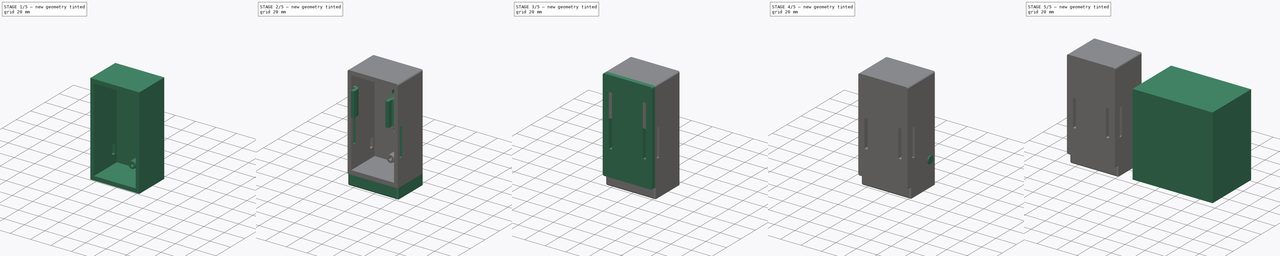
[diagram: build sequence overview — one tinted view per stage of 5, left to right]
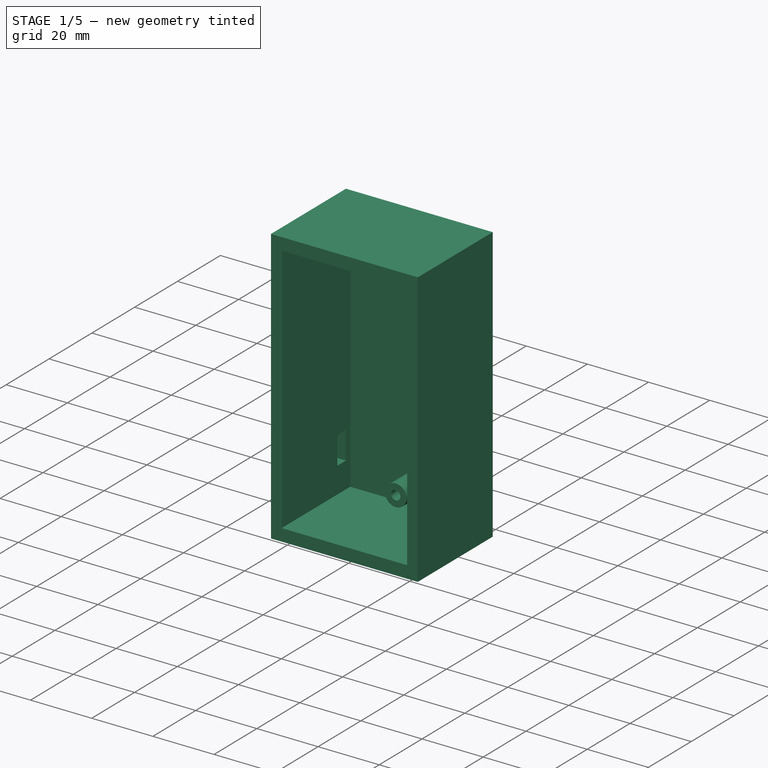
[diagram: stage 1 of 5 — iso view after this stage's code; geometry added in this stage tinted green]
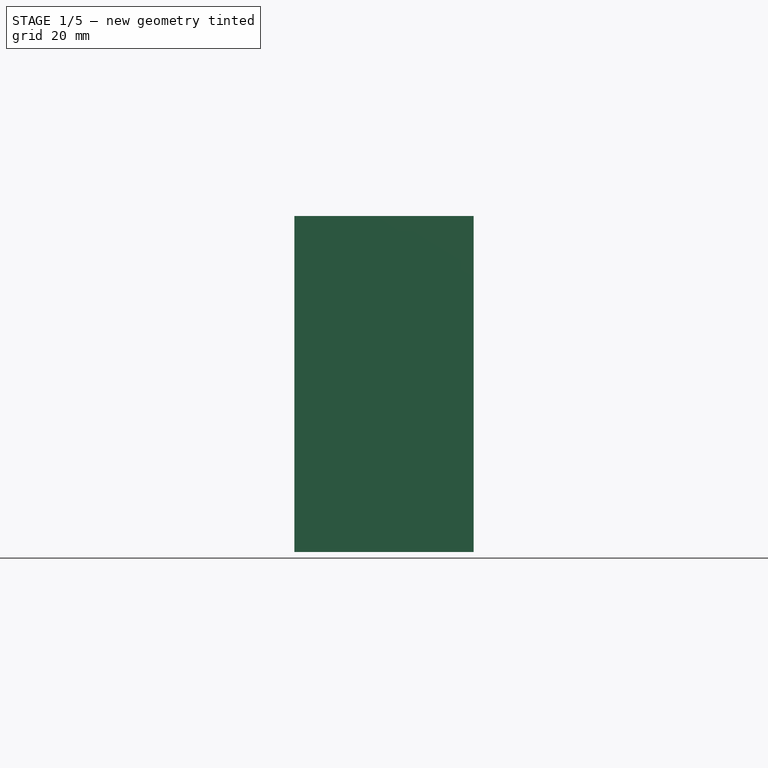
[diagram: stage 1 of 5 — front view after this stage's code; geometry added in this stage tinted green]
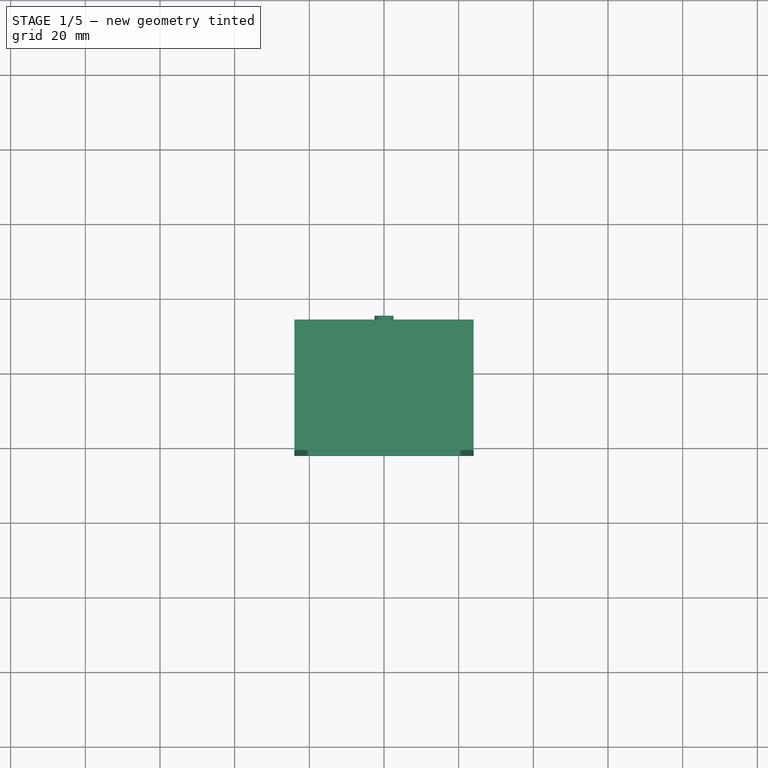
[diagram: stage 1 of 5 — top view after this stage's code; geometry added in this stage tinted green]
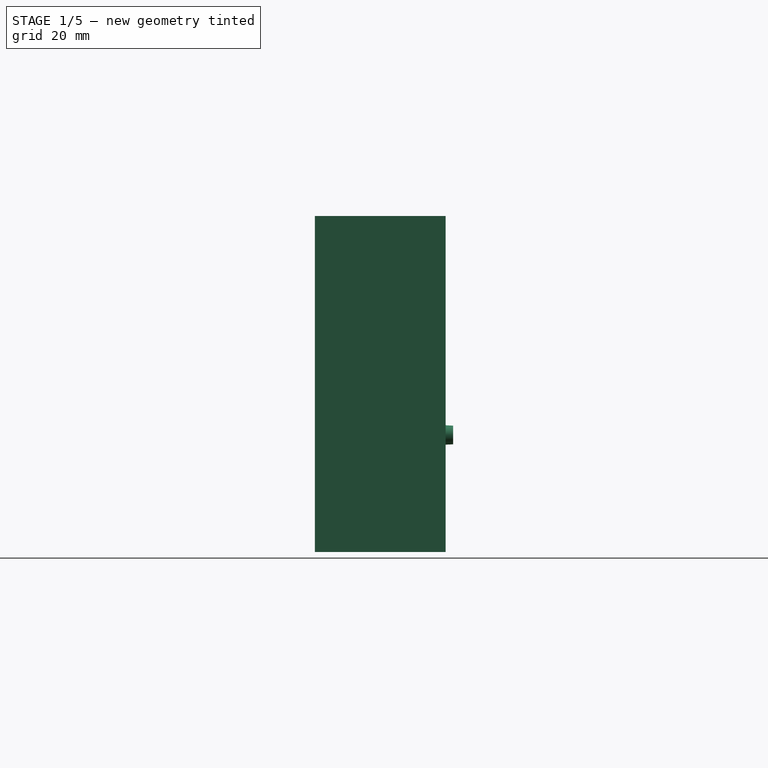
[diagram: stage 1 of 5 — right view after this stage's code; geometry added in this stage tinted green]
FCSTD DOCUMENT  (FreeCAD 0.15R4671 (Git))
Label: Sense_Beam_Tx_V2
License: All rights reserved
LicenseURL: http://en.wikipedia.org/wiki/All_rights_reserved
objects: Part::Cylinder×18, Part::MultiFuse×13, Part::Box×12, Sketcher::SketchObject×9, PartDesign::Pad×9, Drawing::FeatureViewPython×9, Part::Cut×8, Part::Feature×4, Part::Cone×3, Drawing::FeatureViewPart×2, Part::Fillet×2, PartDesign::Pocket×2, Drawing::FeaturePage×1, PartDesign::Fillet×1
note: 92 computed .brp shape members not serialized (recipe doc carries the construction recipe); baked Part::Feature solids carry a one-line shape summary decoded from their .brp

FEATURE [Part::Cylinder] Cylinder002  label="PCB Mount1"
  Angle = 360
  Height = 10
  Placement = pos=(0,12,75) rot=(1,0,0;1.5708rad)
  Radius = 3.5
FEATURE [Part::Cylinder] Cylinder003  label="PCB Mount2"
  Angle = 360
  Height = 10
  Placement = pos=(0,12,5) rot=(1,0,0;1.5708rad)
  Radius = 3.5
FEATURE [Part::Cylinder] Cylinder004  label="PCB Mount_cut1"
  Angle = 360
  Height = 6
  Placement = pos=(0,8,75) rot=(1,0,0;1.5708rad)
  Radius = 1.5
FEATURE [Part::Cylinder] Cylinder005  label="PCB Mount_cut2"
  Angle = 360
  Height = 6
  Placement = pos=(0,8,5) rot=(1,0,0;1.5708rad)
  Radius = 1.5
FEATURE [Part::MultiFuse] Fusion003
  Shapes = -> [Cylinder004,Cylinder005]
FEATURE [Part::Box] Box003  label="Cube"
  Height = 90
  Length = 48
  Placement = pos=(-24,-22,-5) rot=(0,0,1;0rad)
  Width = 35
FEATURE [Part::Box] Box004  label="Cube001"
  Height = 82
  Length = 41
  Placement = pos=(-20.5,-22,-1) rot=(0,0,1;0rad)
  Width = 32
FEATURE [Part::Cut] Cut
  Base = -> Box003
  Tool = -> Box004
FEATURE [Part::MultiFuse] Fusion008
  Shapes = -> [Cylinder002,Cylinder003]
FEATURE [Part::Cut] Cut004
  Base = -> Fusion008
  Tool = -> Fusion003
FEATURE [Part::MultiFuse] Fusion009  label="Front"
  Shapes = -> [Cut,Cut004]
FEATURE [Part::Cone] Cone002  label="Switch_Cut"
  Angle = 360
  Height = 5
  Placement = pos=(0,15,26.35) rot=(1,0,0;1.5708rad)
  Radius1 = 2.5
  Radius2 = 2.75
FEATURE [PartDesign::Pocket] Pocket
  Length = 3.5
  Sketch = -> Sketch006
  Type = 0
FEATURE [Sketcher::SketchObject] Sketch007
  Placement = pos=(0,13,0) rot=(0,0.707107,0.707107;3.14159rad)
  Support = -> Fillet006 [Face22]
  sketch-geometry (4):
    g0: LineSegment StartX=-7.5 StartY=69.9628 StartZ=0 EndX=7.5 EndY=69.9628 EndZ=0
    g1: LineSegment StartX=7.5 StartY=69.9628 StartZ=0 EndX=7.5 EndY=51.9628 EndZ=0
    g2: LineSegment StartX=7.5 StartY=51.9628 StartZ=0 EndX=-7.5 EndY=51.9628 EndZ=0
    g3: LineSegment StartX=-7.5 StartY=51.9628 StartZ=0 EndX=-7.5 EndY=69.9628 EndZ=0
  constraints (11):
    c: Coincident(g0,g1)
    c: Coincident(g1,g2)
    c: Coincident(g2,g3)
    c: Coincident(g3,g0)
    c: Horizontal(g0)
    c: Horizontal(g2)
    c: Vertical(g1)
    c: Vertical(g3)
    c: Distance(g0) = 15
    c: Distance(g1) = 18
    c: DistanceX(g-1,g0) = 7.5
FEATURE [PartDesign::Pad] Pad006
  Length = 23
  Length2 = 100
  Placement = pos=(0,-22,70) rot=(0,0,1;0rad)
  Reversed = true
  Sketch = -> Sketch004
  Type = 0
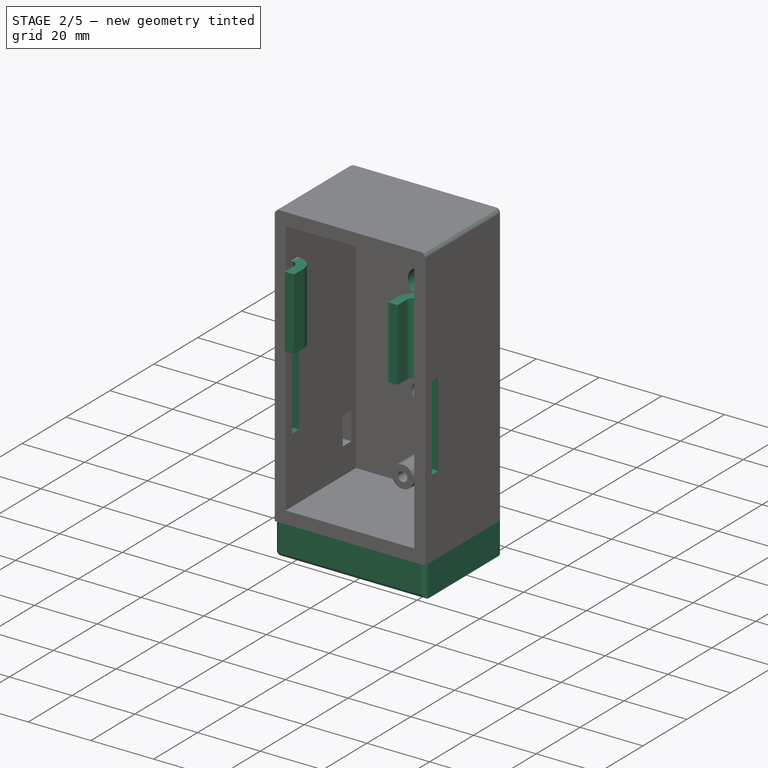
[diagram: stage 2 of 5 — iso view after this stage's code; geometry added in this stage tinted green]
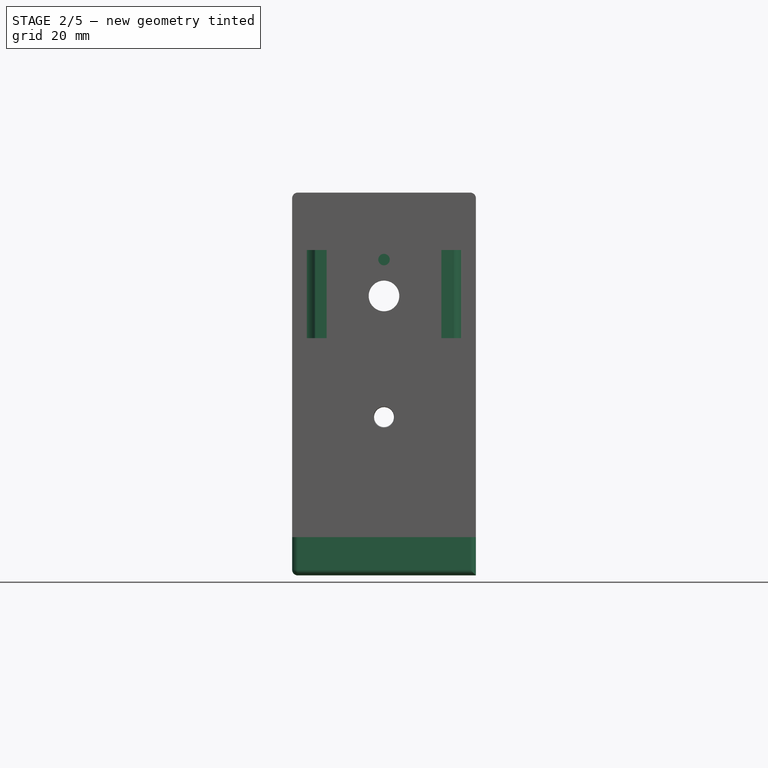
[diagram: stage 2 of 5 — front view after this stage's code; geometry added in this stage tinted green]
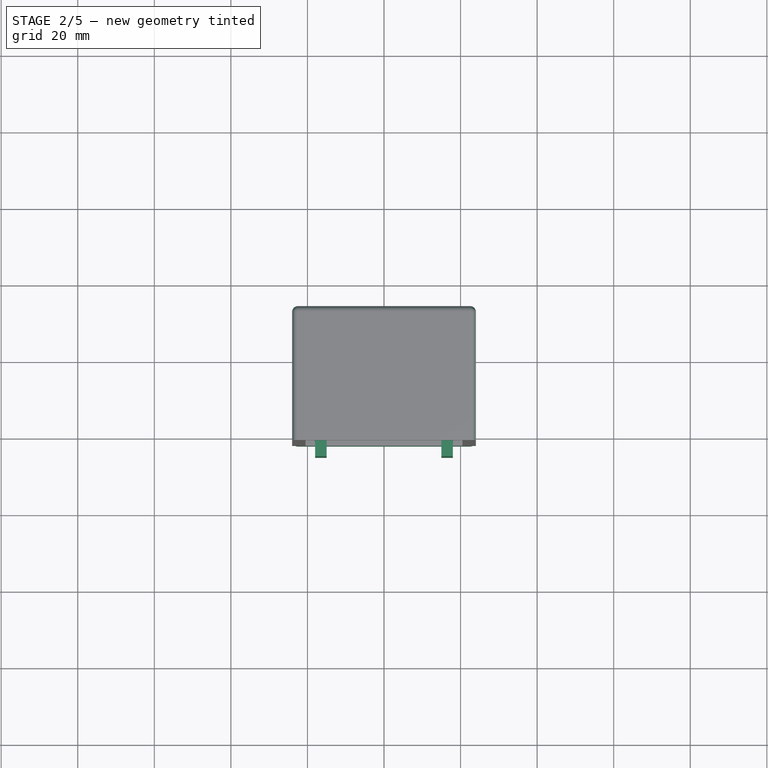
[diagram: stage 2 of 5 — top view after this stage's code; geometry added in this stage tinted green]
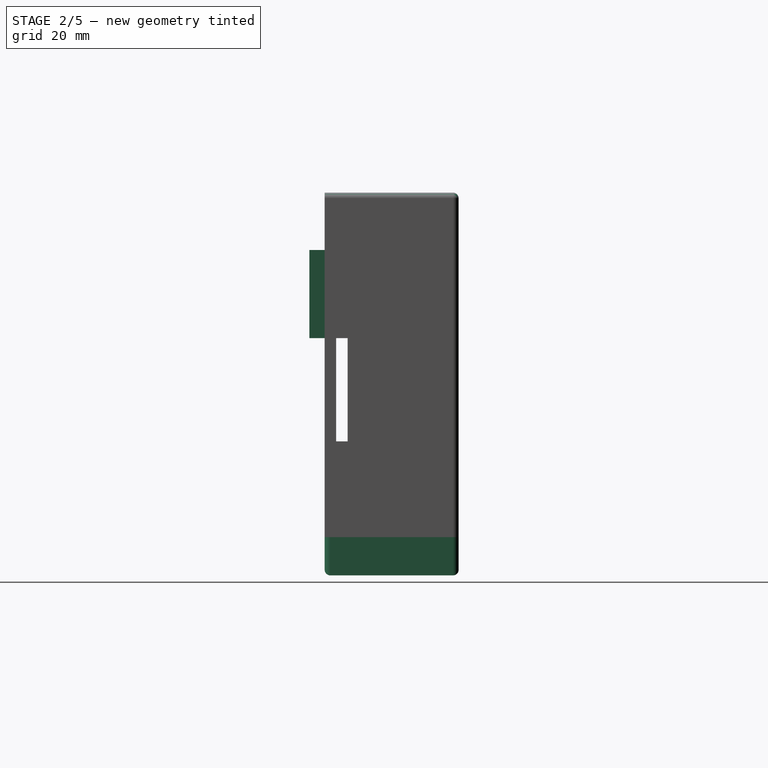
[diagram: stage 2 of 5 — right view after this stage's code; geometry added in this stage tinted green]
FEATURE [Part::Box] Box006  label="Base"
  Height = 10
  Length = 48
  Placement = pos=(-24,-22,-15) rot=(0,0,1;0rad)
  Width = 35
FEATURE [Sketcher::SketchObject] Sketch004
  Placement = pos=(0,-22,70) rot=(0,0,1;0rad)
  sketch-geometry (8):
    g0: LineSegment StartX=-20.5 StartY=6 StartZ=0 EndX=-24 EndY=6 EndZ=0
    g1: LineSegment StartX=-24 StartY=6 StartZ=0 EndX=-24 EndY=3 EndZ=0
    g2: LineSegment StartX=-24 StartY=3 StartZ=0 EndX=-20.5 EndY=3 EndZ=0
    g3: LineSegment StartX=-20.5 StartY=3 StartZ=0 EndX=-20.5 EndY=6 EndZ=0
    g4: LineSegment StartX=20.5 StartY=6 StartZ=0 EndX=24 EndY=6 EndZ=0
    g5: LineSegment StartX=24 StartY=6 StartZ=0 EndX=24 EndY=3 EndZ=0
    g6: LineSegment StartX=24 StartY=3 StartZ=0 EndX=20.5 EndY=3 EndZ=0
    g7: LineSegment StartX=20.5 StartY=3 StartZ=0 EndX=20.5 EndY=6 EndZ=0
  constraints (24):
    c: Coincident(g0,g1)
    c: Coincident(g1,g2)
    c: Coincident(g2,g3)
    c: Coincident(g3,g0)
    c: Horizontal(g0)
    c: Horizontal(g2)
    c: Vertical(g1)
    c: Vertical(g3)
    c: Distance(g0) = 3.5
    c: Coincident(g4,g5)
    c: Coincident(g5,g6)
    c: Coincident(g6,g7)
    c: Coincident(g7,g4)
    c: Horizontal(g4)
    c: Horizontal(g6)
    c: Vertical(g5)
    c: Vertical(g7)
    c: Distance(g4) = 3.5
    c: DistanceX(g-1,g0) = -20.5
    c: DistanceY(g-1,g0) = 6
    c: Distance(g1) = 3
    c: DistanceX(g-1,g4) = 20.5
    c: DistanceY(g-1,g4) = 6
    c: Distance(g5) = 3
FEATURE [PartDesign::Pad] Pad004
  Length = 50
  Length2 = 100
  Placement = pos=(0,-22,70) rot=(0,0,1;0rad)
  Reversed = true
  Type = 0
FEATURE [Part::Cylinder] Cylinder024  label="TX_LED_cut"
  Angle = 360
  Height = 10
  Placement = pos=(0,13,58) rot=(1,0,0;1.5708rad)
  Radius = 4
FEATURE [Part::Cylinder] Cylinder025  label="LED_cut"
  Angle = 360
  Height = 10
  Placement = pos=(0,13,67.5) rot=(1,0,0;1.5708rad)
  Radius = 1.5
FEATURE [Part::MultiFuse] Fusion017  label="Front_all_Cuts"
  Shapes = -> [Cylinder024,Cylinder025,Pad004,Cone002]
FEATURE [Part::Cut] Cut013
  Base = -> Pocket
  Tool = -> Fusion017
FEATURE [Part::Fillet] Fillet006  label="Front_Final"
  Base = -> Cut013
  Edges = 5 edges r=1.5: [Edge2,Edge4,Edge20,Edge21,Edge24]
FEATURE [PartDesign::Pad] Pad007
  Length = 23
  Length2 = 100
  Placement = pos=(0,-22,70) rot=(0,0,1;0rad)
  Reversed = true
  Sketch = -> Sketch003
  Type = 0
FEATURE [PartDesign::Pad] Pad008
  Length = 23
  Length2 = 100
  Placement = pos=(0,-22,70) rot=(0,0,1;0rad)
  Reversed = true
  Sketch = -> Sketch002
  Type = 0
FEATURE [Part::MultiFuse] Fusion020  label="FRONT"
  Shapes = -> [Pad006,Fillet006]
FEATURE [Sketcher::SketchObject] Sketch008
  Placement = pos=(-24,-22,-15) rot=(1,0,0;3.14159rad)
  Support = -> Box006 [Face5]
  sketch-geometry (1):
    g0: Circle CenterX=24 CenterY=-17.5 CenterZ=0 NormalX=0 NormalY=0 NormalZ=1 Radius=3.8
  constraints (3):
    c: Radius(g0) = 3.8
    c: DistanceX(g-1,g0) = 24
    c: DistanceY(g-1,g0) = -17.5
FEATURE [PartDesign::Pocket] Pocket001
  Length = 10
  Placement = pos=(-24,-22,-15) rot=(0,0,1;0rad)
  Sketch = -> Sketch008
  Type = 0
FEATURE [PartDesign::Fillet] Fillet  label="BASE"
  Base = -> Pocket001 [Edge3,Edge1,Edge4,Edge5,Edge10,Edge12,Edge11,Edge6]
  Placement = pos=(-24,-22,-15) rot=(0,0,1;0rad)
  Radius = 1.5
FEATURE [Sketcher::SketchObject] Sketch009
  Placement = pos=(0,13,0) rot=(0,0.707107,0.707107;3.14159rad)
  Support = -> Fusion020 [Face19]
  sketch-geometry (1):
    g0: Circle CenterX=0 CenterY=67.505 CenterZ=0 NormalX=0 NormalY=0 NormalZ=1 Radius=3
  constraints (2):
    c: PointOnObject(g0,g-2)
    c: Radius(g0) = 3
FEATURE [PartDesign::Pad] Pad009  label="FRONT_final"
  Length = 1.5
  Length2 = 100
  Reversed = true
  Sketch = -> Sketch009
  Type = 0
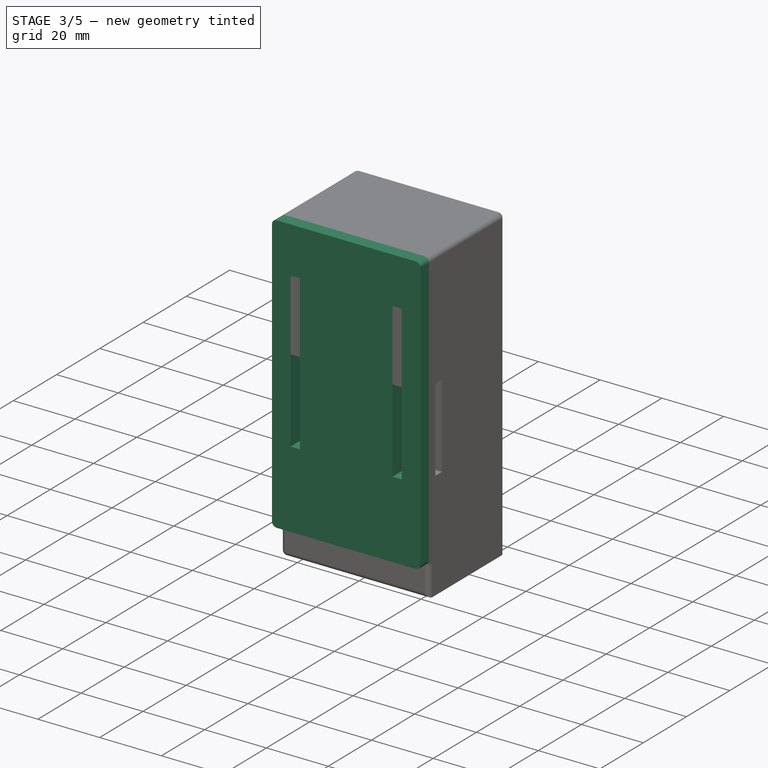
[diagram: stage 3 of 5 — iso view after this stage's code; geometry added in this stage tinted green]
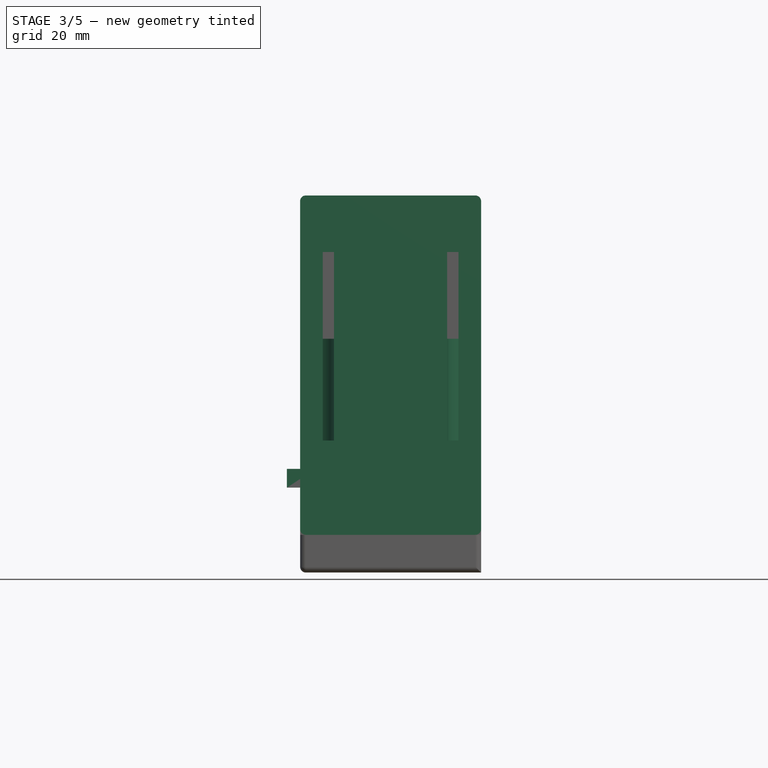
[diagram: stage 3 of 5 — front view after this stage's code; geometry added in this stage tinted green]
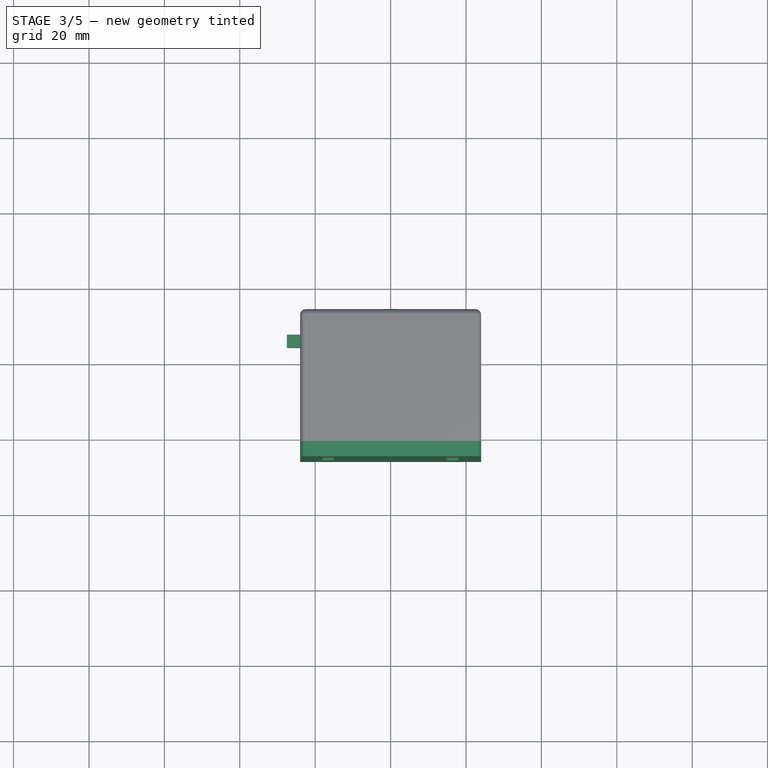
[diagram: stage 3 of 5 — top view after this stage's code; geometry added in this stage tinted green]
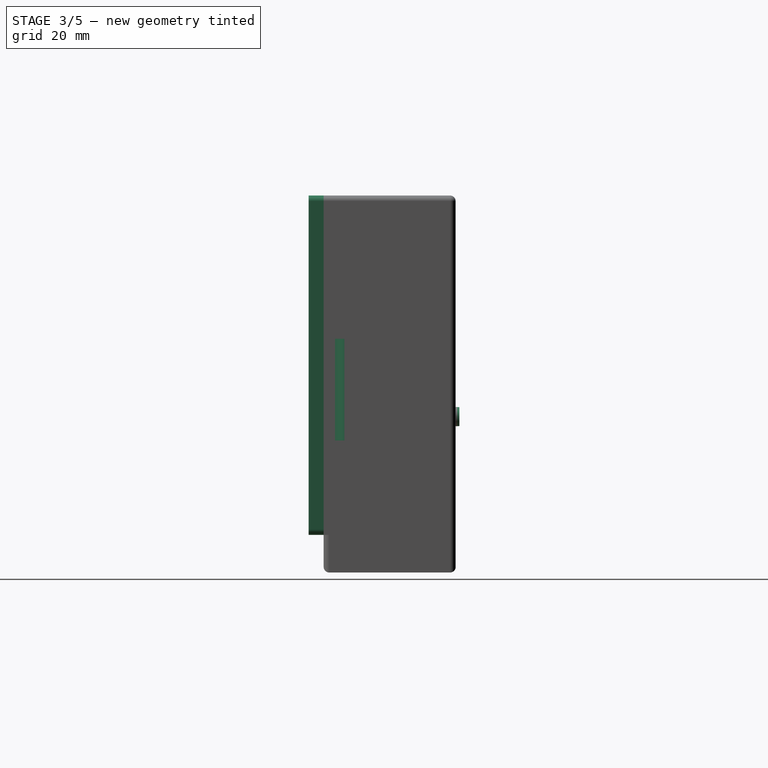
[diagram: stage 3 of 5 — right view after this stage's code; geometry added in this stage tinted green]
FEATURE [Part::Box] Box005  label="Back_Cover"
  Height = 90
  Length = 48
  Placement = pos=(-24,-26,-5) rot=(0,0,1;0rad)
  Width = 4
FEATURE [Sketcher::SketchObject] Sketch001
  Placement = pos=(0,-22,81) rot=(0,0,1;0rad)
  sketch-geometry (6):
    g0: LineSegment StartX=-20.5 StartY=0 StartZ=0 EndX=-20.5 EndY=10 EndZ=0
    g1: LineSegment StartX=-20.5 StartY=10 StartZ=0 EndX=-10.5 EndY=0 EndZ=0
    g2: LineSegment StartX=-10.5 StartY=0 StartZ=0 EndX=-20.5 EndY=0 EndZ=0
    g3: LineSegment StartX=20.5 StartY=0 StartZ=0 EndX=10.5 EndY=0 EndZ=0
    g4: LineSegment StartX=10.5 StartY=0 StartZ=0 EndX=20.5 EndY=10 EndZ=0
    g5: LineSegment StartX=20.5 StartY=10 StartZ=0 EndX=20.5 EndY=0 EndZ=0
  constraints (18):
    c: Coincident(g0,g1)
    c: Coincident(g1,g2)
    c: Coincident(g2,g0)
    c: Coincident(g3,g4)
    c: Coincident(g4,g5)
    c: Coincident(g5,g3)
    c: DistanceX(g-1,g0) = -20.5
    c: DistanceY(g-1,g0) = 0
    c: DistanceY(g-1,g1) = 0
    c: DistanceY(g-1,g3) = 0
    c: DistanceY(g-1,g3) = 0
    c: DistanceX(g-1,g3) = 20.5
    c: DistanceY(g-1,g0) = 10
    c: DistanceY(g-1,g4) = 10
    c: DistanceX(g-1,g4) = 20.5
    c: DistanceX(g-1,g0) = -20.5
    c: Distance(g2) = 10
    c: Distance(g3) = 10
FEATURE [PartDesign::Pad] Pad001
  Length = 82
  Length2 = 100
  Placement = pos=(0,-22,81) rot=(0,0,1;0rad)
  Reversed = true
  Type = 0
FEATURE [Sketcher::SketchObject] Sketch002
  Placement = pos=(0,-22,70) rot=(0,0,1;0rad)
  sketch-geometry (8):
    g0: ArcOfCircle CenterX=20.5 CenterY=0 CenterZ=0 NormalX=0 NormalY=0 NormalZ=1 Radius=5.5 StartAngle=1.5708 EndAngle=3.14159
    g1: ArcOfCircle CenterX=20.5 CenterY=0 CenterZ=0 NormalX=0 NormalY=0 NormalZ=1 Radius=2.5 StartAngle=1.5708 EndAngle=3.14159
    g2: ArcOfCircle CenterX=-20.5 CenterY=0 CenterZ=0 NormalX=0 NormalY=0 NormalZ=1 Radius=5.5 StartAngle=0 EndAngle=1.5708
    g3: ArcOfCircle CenterX=-20.5 CenterY=0 CenterZ=0 NormalX=0 NormalY=0 NormalZ=1 Radius=2.5 StartAngle=0 EndAngle=1.5708
    g4: LineSegment StartX=15 StartY=0 StartZ=0 EndX=18 EndY=0 EndZ=0
    g5: LineSegment StartX=20.5 StartY=5.5 StartZ=0 EndX=20.5 EndY=2.5 EndZ=0
    g6: LineSegment StartX=-20.5 StartY=5.5 StartZ=0 EndX=-20.5 EndY=2.5 EndZ=0
    g7: LineSegment StartX=-18 StartY=0 StartZ=0 EndX=-15 EndY=0 EndZ=0
  constraints (26):
    c: DistanceX(g-1,g0) = 20.5
    c: DistanceY(g-1,g0) = 0
    c: DistanceX(g-1,g0) = 15
    c: DistanceX(g0,g0) = 0
    c: Coincident(g1,g0)
    c: DistanceX(g0,g1) = 3
    c: PointOnObject(g2,g-1)
    c: PointOnObject(g2,g-1)
    c: Coincident(g3,g2)
    c: DistanceX(g-1,g2) = -20.5
    c: DistanceX(g-1,g2) = -15
    c: DistanceX(g3,g2) = 3
    c: DistanceX(g2,g3) = 0
    c: DistanceX(g2,g3) = 0
    c: Coincident(g4,g0)
    c: Coincident(g4,g1)
    c: Horizontal(g4)
    c: Coincident(g5,g0)
    c: Coincident(g5,g1)
    c: Vertical(g5)
    c: Coincident(g6,g2)
    c: Coincident(g6,g3)
    c: Horizontal(g7)
    c: Coincident(g3,g7)
    c: Coincident(g7,g2)
    c: DistanceY(g0,g0) = 0
FEATURE [PartDesign::Pad] Pad002
  Length = 50
  Length2 = 100
  Placement = pos=(0,-22,70) rot=(0,0,1;0rad)
  Reversed = true
  Type = 0
FEATURE [Sketcher::SketchObject] Sketch003
  Placement = pos=(0,-22,70) rot=(0,0,1;0rad)
  sketch-geometry (8):
    g0: LineSegment StartX=-18 StartY=0 StartZ=0 EndX=-15 EndY=0 EndZ=0
    g1: LineSegment StartX=-15 StartY=0 StartZ=0 EndX=-15 EndY=-4 EndZ=0
    g2: LineSegment StartX=-15 StartY=-4 StartZ=0 EndX=-18 EndY=-4 EndZ=0
    g3: LineSegment StartX=-18 StartY=-4 StartZ=0 EndX=-18 EndY=0 EndZ=0
    g4: LineSegment StartX=15 StartY=0 StartZ=0 EndX=18 EndY=0 EndZ=0
    g5: LineSegment StartX=18 StartY=0 StartZ=0 EndX=18 EndY=-4 EndZ=0
    g6: LineSegment StartX=18 StartY=-4 StartZ=0 EndX=15 EndY=-4 EndZ=0
    g7: LineSegment StartX=15 StartY=-4 StartZ=0 EndX=15 EndY=0 EndZ=0
  constraints (24):
    c: Coincident(g0,g1)
    c: Coincident(g1,g2)
    c: Coincident(g2,g3)
    c: Coincident(g3,g0)
    c: Horizontal(g0)
    c: Horizontal(g2)
    c: Vertical(g1)
    c: Vertical(g3)
    c: Coincident(g4,g5)
    c: Coincident(g5,g6)
    c: Coincident(g6,g7)
    c: Coincident(g7,g4)
    c: Horizontal(g4)
    c: Horizontal(g6)
    c: Vertical(g5)
    c: Vertical(g7)
    c: Distance(g3) = 4
    c: Distance(g5) = 4
    c: Distance(g0) = 3
    c: DistanceX(g-1,g0) = -15
    c: DistanceY(g-1,g0) = 0
    c: DistanceX(g-1,g4) = 15
    c: DistanceY(g-1,g4) = 0
    c: Distance(g6) = 3
FEATURE [PartDesign::Pad] Pad003
  Length = 50
  Length2 = 100
  Placement = pos=(0,-22,70) rot=(0,0,1;0rad)
  Reversed = true
  Type = 0
FEATURE [Part::Cut] Cut006
  Base = -> Pad001
  Tool = -> Pad002
FEATURE [Part::Cylinder] Cylinder023  label="Light_Sensor_cut_cir"
  Angle = 360
  Height = 10
  Placement = pos=(0,13,13.1) rot=(1,0,0;1.5708rad)
  Radius = 2.5
FEATURE [Part::Feature] Part__Feature  label="Board_Geoms"
  Placement = pos=(-33,0.4,197) rot=(1,0,0;1.5708rad)
  shape: bbox 40 x 1.6 x 80 mm, 26 faces (baked)
FEATURE [Part::Cut] Cut009
  Base = -> Box005
  Tool = -> Pad003
FEATURE [Part::MultiFuse] Fusion013  label="Back_final"
  Shapes = -> [Cut009,Cut006]
FEATURE [Part::Fillet] Fillet005  label="Back Cover"
  Base = -> Fusion013
  Edges = 4 edges r=1.5: [Edge2,Edge4,Edge17,Edge28]
FEATURE [Part::Feature] Part__Feature002  label="4967_Tactile_Switch"
  Placement = pos=(0,-22,30.85) rot=(-1,0,0;1.5708rad)
  shape: bbox 6 x 10 x 6 mm, 8 faces (baked)
FEATURE [Part::Feature] Part__Feature003  label="Slide_Switch"
  Placement = pos=(-13,2,4) rot=(0,-1,0;1.5708rad)
  shape: bbox 7 x 7.5 x 22.5 mm, 19 faces (baked)
FEATURE [Part::Feature] Part__Feature004  label="Slide_Switch001"
  Placement = pos=(-13,2,4) rot=(0,-1,0;1.5708rad)
  shape: bbox 7.5 x 3.5 x 5 mm, 6 faces (baked)
FEATURE [Part::MultiFuse] Fusion016  label="Switch"
  Shapes = -> [Part__Feature004,Part__Feature003]
FEATURE [Sketcher::SketchObject] Sketch006
  Placement = pos=(-24,0,0) rot=(0.57735,-0.57735,-0.57735;2.0944rad)
  Support = -> Fusion009 [Face1]
  sketch-geometry (4):
    g0: LineSegment StartX=-8 StartY=16.5 StartZ=0 EndX=-4 EndY=16.5 EndZ=0
    g1: LineSegment StartX=-4 StartY=16.5 StartZ=0 EndX=-4 EndY=7.5 EndZ=0
    g2: LineSegment StartX=-4 StartY=7.5 StartZ=0 EndX=-8 EndY=7.5 EndZ=0
    g3: LineSegment StartX=-8 StartY=7.5 StartZ=0 EndX=-8 EndY=16.5 EndZ=0
  constraints (12):
    c: Coincident(g0,g1)
    c: Coincident(g1,g2)
    c: Coincident(g2,g3)
    c: Coincident(g3,g0)
    c: Horizontal(g0)
    c: Horizontal(g2)
    c: Vertical(g1)
    c: Vertical(g3)
    c: Distance(g2) = 4
    c: Distance(g1) = 9
    c: DistanceY(g-1,g1) = 7.5
    c: DistanceX(g-1,g1) = -4
FEATURE [Part::Cone] Cone
  Angle = 360
  Height = 2
  Placement = pos=(0,12,26.35) rot=(1,0,0;1.5708rad)
  Radius1 = 1.5
  Radius2 = 1.75
FEATURE [Part::Cone] Cone001
  Angle = 360
  Height = 4
  Placement = pos=(0,14,26.35) rot=(1,0,0;1.5708rad)
  Radius1 = 2.5
  Radius2 = 2.75
FEATURE [Part::Cut] Cut012  label="Switch_Cap"
  Base = -> Cone001
  Tool = -> Cone
FEATURE [Part::MultiFuse] Fusion019  label="BACK"
  Shapes = -> [Pad008,Pad007,Fillet005]
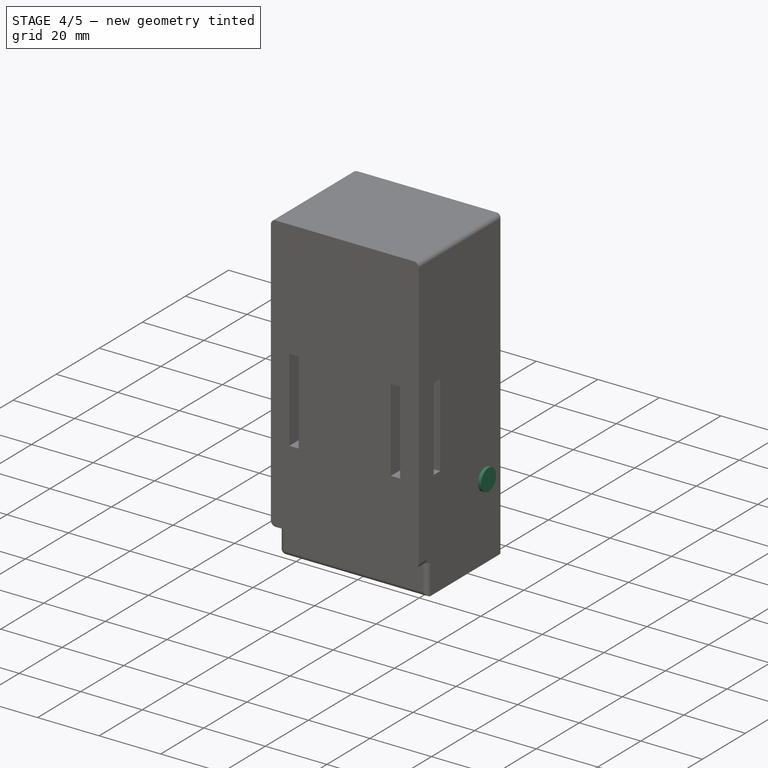
[diagram: stage 4 of 5 — iso view after this stage's code; geometry added in this stage tinted green]
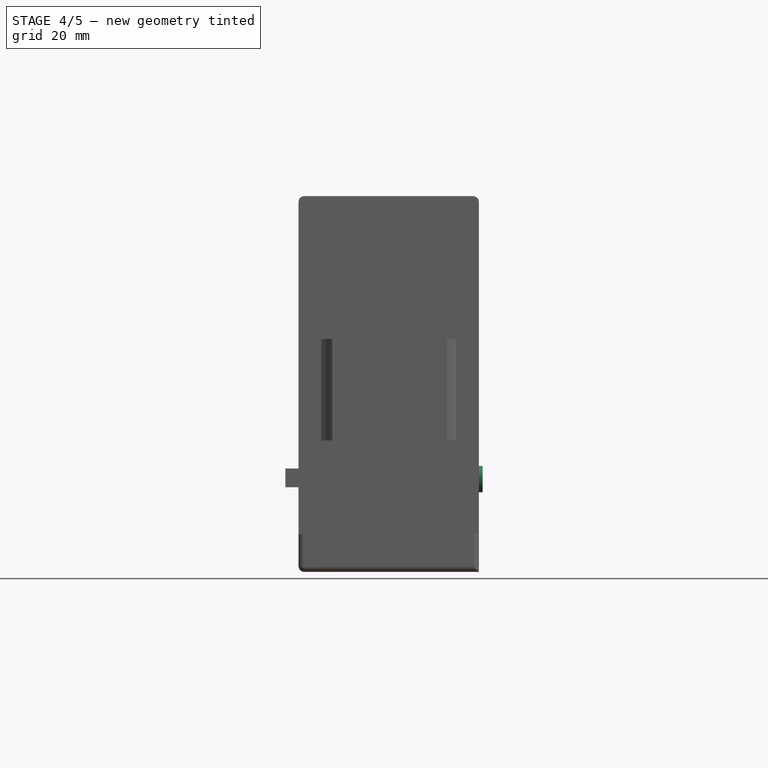
[diagram: stage 4 of 5 — front view after this stage's code; geometry added in this stage tinted green]
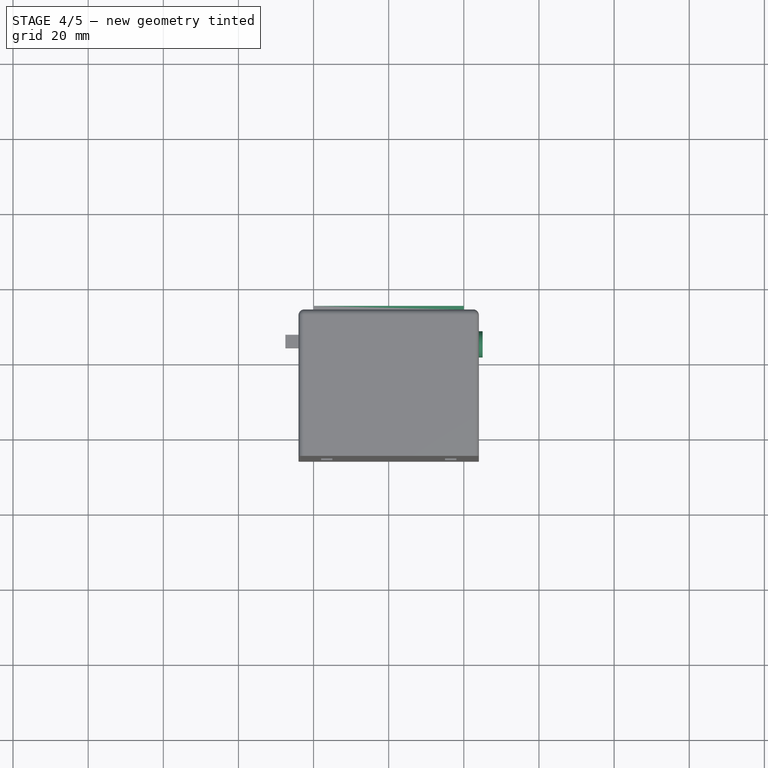
[diagram: stage 4 of 5 — top view after this stage's code; geometry added in this stage tinted green]
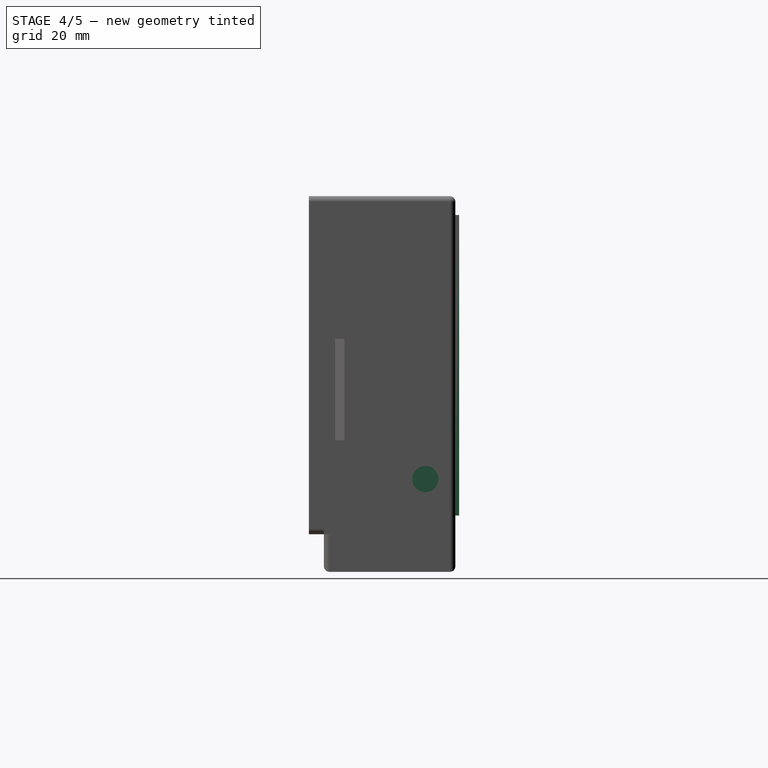
[diagram: stage 4 of 5 — right view after this stage's code; geometry added in this stage tinted green]
FEATURE [Part::Cylinder] Cylinder015  label="Back_Mount_cut003"
  Angle = 360
  Height = 10
  Placement = pos=(0,-16,75) rot=(1,0,0;1.5708rad)
  Radius = 3
FEATURE [Part::Cylinder] Cylinder016  label="Back_Mount_cut004"
  Angle = 360
  Height = 10
  Placement = pos=(0,-16,5) rot=(1,0,0;1.5708rad)
  Radius = 3
FEATURE [Part::MultiFuse] Fusion006
  Shapes = -> [Cylinder015,Cylinder016]
FEATURE [Part::Box] Box008  label="TX_LED"
  Height = 5
  Length = 5
  Placement = pos=(-2.5,2,55.5) rot=(0,0,1;0rad)
  Width = 5
FEATURE [Part::Box] Box009  label="LED"
  Height = 3.3
  Length = 5
  Placement = pos=(-2.5,2,65.8) rot=(0,0,1;0rad)
  Width = 5
FEATURE [Part::Box] Box010  label="Light_Sensor"
  Height = 5
  Length = 5
  Placement = pos=(-2.5,2,10.6) rot=(0,0,1;0rad)
  Width = 5
FEATURE [Part::Box] Box011  label="Button"
  Height = 4
  Length = 4
  Placement = pos=(-2,2,24.2) rot=(0,0,1;0rad)
  Width = 4
FEATURE [Sketcher::SketchObject] Sketch
  Placement = pos=(0,13,0) rot=(0,0.707107,0.707107;3.14159rad)
  sketch-geometry (6):
    g0: LineSegment StartX=-20 StartY=80 StartZ=0 EndX=20 EndY=80 EndZ=0
    g1: LineSegment StartX=20 StartY=80 StartZ=0 EndX=20 EndY=0 EndZ=0
    g2: LineSegment StartX=20 StartY=0 StartZ=0 EndX=-20 EndY=0 EndZ=0
    g3: LineSegment StartX=-20 StartY=0 StartZ=0 EndX=-20 EndY=80 EndZ=0
    g4: Circle CenterX=0 CenterY=75 CenterZ=0 NormalX=0 NormalY=0 NormalZ=1 Radius=1.5
    g5: Circle CenterX=0 CenterY=5 CenterZ=0 NormalX=0 NormalY=0 NormalZ=1 Radius=1.5
  constraints (18):
    c: Coincident(g0,g1)
    c: Coincident(g1,g2)
    c: Coincident(g2,g3)
    c: Coincident(g3,g0)
    c: Horizontal(g0)
    c: Horizontal(g2)
    c: Vertical(g1)
    c: Vertical(g3)
    c: Distance(g2) = 40
    c: Distance(g1) = 80
    c: DistanceX(g-1,g2) = -20
    c: DistanceY(g-1,g2) = 0
    c: DistanceX(g-1,g5) = 0
    c: DistanceX(g-1,g4) = 0
    c: DistanceY(g5,g4) = 70
    c: DistanceY(g-1,g5) = 5
    c: Equal(g4,g5)
    c: Radius(g4) = 1.5
FEATURE [PartDesign::Pad] Pad  label="PCB Size"
  Length = 1
  Length2 = 100
  Placement = pos=(0,13,0) rot=(0,0.707107,0.707107;3.14159rad)
  Type = 0
FEATURE [Drawing::FeatureViewPart] Ortho  label="Ortho_0_0"
  Direction = (1,0,0)
  HiddenWidth = 0.15
  LineWidth = 0.35
  Rotation = -90
  Scale = 2
  ShowHiddenLines = false
  ShowSmoothLines = false
  Source = -> Pad
  Tolerance = 0.05
  ViewResult = <g id="Ortho_0_0"\n   transform="rotate(-90,2.33333,185) translate(2.33333,185) scale(2,2)"\n  >\n<g   stroke="rgb(0, 0, 0)"\n   stroke-width="0.175"\n   stroke-linecap="butt"\n   stroke-linejoin="miter"\n   fill="none"\n   transform="scale(1,-1)"\n  >\n<path id= "1" d=" M 80 -13 L 80 -14 " />\n<path id= "2" d=" M 1.73191e-15 -13 L 1.28782e-15 -14 " />\n<path id= "3" d=" M 1.73191e-15 -13 L 80 -13 " />\n<path id= "4" d=" M 1.28782e-15 -14 L 80 -14 " />\n<path d="M76.5,-14 L76.4624,-14  L76.3515,-14  L76.1727,-14  L75.9352,-14  L75.6508,-14  L75.3338,-14  L75,-14  L74.6662,-14  L74.3492,-14  L74.0648,-14  L73.8273,-14  L73.6485,-14  L73.5376,-14  L73.5,-14 " /></g>\n</g>
  Visible = true
  X = 2.33333
  Y = 185
FEATURE [Drawing::FeatureViewPart] Ortho001  label="Ortho_1_0"
  Direction = (0,1,0)
  HiddenWidth = 0.15
  LineWidth = 0.35
  Rotation = -90
  Scale = 2
  ShowHiddenLines = false
  ShowSmoothLines = false
  Source = -> Pad
  Tolerance = 0.05
  ViewResult = <g id="Ortho_1_0"\n   transform="rotate(-90,88.6667,185) translate(88.6667,185) scale(2,2)"\n  >\n<g   stroke="rgb(0, 0, 0)"\n   stroke-width="0.175"\n   stroke-linecap="butt"\n   stroke-linejoin="miter"\n   fill="none"\n   transform="scale(1,-1)"\n  >\n<path id= "1" d=" M 80 20 L 80 -20 " />\n<path id= "2" d=" M 80 -20 L -4.26326e-14 -20 " />\n<path id= "3" d=" M -2.176e-15 -20 L 1.28782e-15 20 " />\n<path id= "4" d=" M 1.28782e-15 20 L 80 20 " />\n<circle cx ="5" cy ="-3.46382e-16" r ="1.5" /><circle cx ="75" cy ="-6.40807e-15" r ="1.5" /></g>\n</g>
  Visible = true
  X = 88.6667
  Y = 185
FEATURE [Drawing::FeatureViewPython] dia  # drawing view (typed FeaturePython)
  Rotation = 0
  ViewResult = <g>  <circle cx ="88.666700" cy ="35.000000" r="0.250000" stroke="none" fill="rgb(0,0,255)" /> \n<line x1="109.088013" y1="18.721375" x2="86.320823" y2="36.869990" style="stroke:rgb(0,0,255);stroke-width:0.50" />\n<polygon points="91.012577,33.130010 93.981784,32.041979 94.140413,30.636690 92.735124,30.478061" style="fill:rgb(0,0,255);stroke:rgb(0,0,255);stroke-width:0" />\n<polygon points="86.320823,36.869990 83.351616,37.958021 83.192987,39.363310 84.598276,39.521939" style="fill:rgb(0,0,255);stroke:rgb(0,0,255);stroke-width:0" />\n<line x1="109.088013" y1="18.721375" x2="126.369283" y2="18.721375" style="stroke:rgb(0,0,255);stroke-width:0.50" />\n<text x="117.728648" y="16.721375" font-family="inherit" font-size="3.6" fill="rgb(0,0,255)" text-anchor="middle" transform="rotate(0.000000 117.728648,16.721375)" >Ø3</text> </g>
  Visible = true
  X = 0
  Y = 0
  arrowL1 = 3
  arrowL2 = 1
  arrowW = 2
  arrow_scheme = 0
  autoPlaceOffset = 2
  autoPlaceText = true
  centerPointDia = 0.5
  click1_x = 109.088
  click1_y = 18.7214
  click2_x = 126.369
  click2_y = 18.7214
  click3_x = 126.369
  click3_y = 18.7214
  comma_decimal_place = false
  lineColor = rgb(0,0,255)
  strokeWidth = 0.5
  textFormat_circular = Ø%(value)3.3f
  textRenderer_color = rgb(0,0,255)
  textRenderer_family = inherit
  textRenderer_size = 3.6
  unit_custom_scale = 1
  unit_scheme = 0
FEATURE [Drawing::FeatureViewPython] centerLines001  # drawing view (typed FeaturePython)
  Rotation = 0
  ViewResult = <blob: 2258 chars omitted>
  Visible = true
  X = 0
  Y = 0
  centerLine_color = rgb(0,0,255)
  centerLine_len_dash = 6
  centerLine_len_dot = 3
  centerLine_len_gap = 2
  centerLine_width = 0.32
  click1_x = 99.0073
  click1_y = 186.134
  click2_x = 77.0457
  click2_y = 164.172
FEATURE [Drawing::FeatureViewPython] dim001  # drawing view (typed FeaturePython)
  Rotation = 0
  ViewResult = <g> \n  <line x1="130.666700" y1="25.000000" x2="140.690261" y2="25.000000" style="stroke:rgb(0,0,255);stroke-width:0.50" />\n<line x1="130.666700" y1="185.000000" x2="140.690261" y2="185.000000" style="stroke:rgb(0,0,255);stroke-width:0.50" />\n<line x1="139.690261" y1="25.000000" x2="139.690261" y2="185.000000" style="stroke:rgb(0,0,255);stroke-width:0.50" /> \n  <polygon points="139.690261,185.000000 140.690261,182.000000 139.690261,181.000000 138.690261,182.000000" style="fill:rgb(0,0,255);stroke:rgb(0,0,255);stroke-width:0" /><polygon points="139.690261,25.000000 138.690261,28.000000 139.690261,29.000000 140.690261,28.000000" style="fill:rgb(0,0,255);stroke:rgb(0,0,255);stroke-width:0" /> \n  <text x="137.690261" y="105.000000" font-family="inherit" font-size="3.6" fill="rgb(0,0,255)" text-anchor="middle" transform="rotate(-90.000000 137.690261,105.000000)" >80</text> </g>
  Visible = true
  X = 0
  Y = 0
  arrowL1 = 3
  arrowL2 = 1
  arrowW = 2
  arrow_scheme = 0
  autoPlaceOffset = 2
  autoPlaceText = true
  click1_x = 139.69
  click1_y = 181.453
  click2_x = 139.69
  click2_y = 181.453
  comma_decimal_place = false
  dimension_line_overshoot = 1
  gap_datum_points = 2
  halfDimension_linear = false
  lineColor = rgb(0,0,255)
  strokeWidth = 0.5
  textFormat_linear = %(value)3.3f
  textRenderer_color = rgb(0,0,255)
  textRenderer_family = inherit
  textRenderer_size = 3.6
  unit_custom_scale = 1
  unit_scheme = 0
FEATURE [Drawing::FeatureViewPython] dim002  # drawing view (typed FeaturePython)
  Rotation = 0
  ViewResult = <g> \n  <line x1="48.666700" y1="187.000000" x2="48.666700" y2="195.054255" style="stroke:rgb(0,0,255);stroke-width:0.50" />\n<line x1="128.666700" y1="187.000000" x2="128.666700" y2="195.054255" style="stroke:rgb(0,0,255);stroke-width:0.50" />\n<line x1="48.666700" y1="194.054255" x2="128.666700" y2="194.054255" style="stroke:rgb(0,0,255);stroke-width:0.50" /> \n  <polygon points="128.666700,194.054255 125.666700,193.054255 124.666700,194.054255 125.666700,195.054255" style="fill:rgb(0,0,255);stroke:rgb(0,0,255);stroke-width:0" /><polygon points="48.666700,194.054255 51.666700,195.054255 52.666700,194.054255 51.666700,193.054255" style="fill:rgb(0,0,255);stroke:rgb(0,0,255);stroke-width:0" /> \n  <text x="88.666700" y="192.054255" font-family="inherit" font-size="3.6" fill="rgb(0,0,255)" text-anchor="middle" transform="rotate(0.000000 88.666700,192.054255)" >40</text> </g>
  Visible = true
  X = 0
  Y = 0
  arrowL1 = 3
  arrowL2 = 1
  arrowW = 2
  arrow_scheme = 0
  autoPlaceOffset = 2
  autoPlaceText = true
  click1_x = 130.69
  click1_y = 194.054
  click2_x = 130.69
  click2_y = 194.054
  comma_decimal_place = false
  dimension_line_overshoot = 1
  gap_datum_points = 2
  halfDimension_linear = false
  lineColor = rgb(0,0,255)
  strokeWidth = 0.5
  textFormat_linear = %(value)3.3f
  textRenderer_color = rgb(0,0,255)
  textRenderer_family = inherit
  textRenderer_size = 3.6
  unit_custom_scale = 1
  unit_scheme = 0
FEATURE [Drawing::FeatureViewPython] dim004  # drawing view (typed FeaturePython)
  Rotation = 0
  ViewResult = <g> \n  <line x1="90.666700" y1="175.000000" x2="136.224992" y2="175.000000" style="stroke:rgb(0,0,255);stroke-width:0.50" />\n<line x1="130.666700" y1="185.000000" x2="136.224992" y2="185.000000" style="stroke:rgb(0,0,255);stroke-width:0.50" />\n<line x1="135.224992" y1="175.000000" x2="135.224992" y2="185.000000" style="stroke:rgb(0,0,255);stroke-width:0.50" /> \n  <polygon points="135.224992,185.000000 134.224992,188.000000 135.224992,189.000000 136.224992,188.000000" style="fill:rgb(0,0,255);stroke:rgb(0,0,255);stroke-width:0" /><polygon points="135.224992,175.000000 136.224992,172.000000 135.224992,171.000000 134.224992,172.000000" style="fill:rgb(0,0,255);stroke:rgb(0,0,255);stroke-width:0" /> \n  <text x="133.224992" y="180.000000" font-family="inherit" font-size="3.6" fill="rgb(0,0,255)" text-anchor="middle" transform="rotate(-90.000000 133.224992,180.000000)" >5</text> </g>
  Visible = true
  X = 0
  Y = 0
  arrowL1 = 3
  arrowL2 = 1
  arrowW = 2
  arrow_scheme = 0
  autoPlaceOffset = 2
  autoPlaceText = true
  click1_x = 135.225
  click1_y = 176.504
  click2_x = 135.225
  click2_y = 176.504
  comma_decimal_place = false
  dimension_line_overshoot = 1
  gap_datum_points = 2
  halfDimension_linear = false
  lineColor = rgb(0,0,255)
  strokeWidth = 0.5
  textFormat_linear = %(value)3.3f
  textRenderer_color = rgb(0,0,255)
  textRenderer_family = inherit
  textRenderer_size = 3.6
  unit_custom_scale = 1
  unit_scheme = 0
FEATURE [Drawing::FeatureViewPython] dim005  # drawing view (typed FeaturePython)
  Rotation = 0
  ViewResult = <g> \n  <line x1="88.666700" y1="177.000000" x2="88.666700" y2="182.340481" style="stroke:rgb(0,0,255);stroke-width:0.50" />\n<line x1="128.666700" y1="183.000000" x2="128.666700" y2="180.340481" style="stroke:rgb(0,0,255);stroke-width:0.50" />\n<line x1="88.666700" y1="181.340481" x2="128.666700" y2="181.340481" style="stroke:rgb(0,0,255);stroke-width:0.50" /> \n  <polygon points="128.666700,181.340481 125.666700,180.340481 124.666700,181.340481 125.666700,182.340481" style="fill:rgb(0,0,255);stroke:rgb(0,0,255);stroke-width:0" /><polygon points="88.666700,181.340481 91.666700,182.340481 92.666700,181.340481 91.666700,180.340481" style="fill:rgb(0,0,255);stroke:rgb(0,0,255);stroke-width:0" /> \n  <text x="108.666700" y="179.340481" font-family="inherit" font-size="3.6" fill="rgb(0,0,255)" text-anchor="middle" transform="rotate(0.000000 108.666700,179.340481)" >20</text> </g>
  Visible = true
  X = 0
  Y = 0
  arrowL1 = 3
  arrowL2 = 1
  arrowW = 2
  arrow_scheme = 0
  autoPlaceOffset = 2
  autoPlaceText = true
  click1_x = 113.579
  click1_y = 181.34
  click2_x = 113.579
  click2_y = 181.34
  comma_decimal_place = false
  dimension_line_overshoot = 1
  gap_datum_points = 2
  halfDimension_linear = false
  lineColor = rgb(0,0,255)
  strokeWidth = 0.5
  textFormat_linear = %(value)3.3f
  textRenderer_color = rgb(0,0,255)
  textRenderer_family = inherit
  textRenderer_size = 3.6
  unit_custom_scale = 1
  unit_scheme = 0
FEATURE [Drawing::FeatureViewPython] dia001  # drawing view (typed FeaturePython)
  Rotation = 0
  ViewResult = <g>  <circle cx ="88.666700" cy ="175.000000" r="0.250000" stroke="none" fill="rgb(0,0,255)" /> \n<line x1="102.607537" y1="160.211769" x2="86.608845" y2="177.182941" style="stroke:rgb(0,0,255);stroke-width:0.50" />\n<polygon points="90.724555,172.817059 93.510057,171.320069 93.468361,169.906470 92.054762,169.948165" style="fill:rgb(0,0,255);stroke:rgb(0,0,255);stroke-width:0" />\n<polygon points="86.608845,177.182941 83.823343,178.679931 83.865039,180.093530 85.278638,180.051835" style="fill:rgb(0,0,255);stroke:rgb(0,0,255);stroke-width:0" />\n<line x1="102.607537" y1="160.211769" x2="122.408992" y2="160.211769" style="stroke:rgb(0,0,255);stroke-width:0.50" />\n<text x="112.508265" y="158.211769" font-family="inherit" font-size="3.6" fill="rgb(0,0,255)" text-anchor="middle" transform="rotate(0.000000 112.508265,158.211769)" >Ø3</text> </g>
  Visible = true
  X = 0
  Y = 0
  arrowL1 = 3
  arrowL2 = 1
  arrowW = 2
  arrow_scheme = 0
  autoPlaceOffset = 2
  autoPlaceText = true
  centerPointDia = 0.5
  click1_x = 102.608
  click1_y = 160.212
  click2_x = 122.409
  click2_y = 156.612
  click3_x = 122.409
  click3_y = 156.612
  comma_decimal_place = false
  lineColor = rgb(0,0,255)
  strokeWidth = 0.5
  textFormat_circular = Ø%(value)3.3f
  textRenderer_color = rgb(0,0,255)
  textRenderer_family = inherit
  textRenderer_size = 3.6
  unit_custom_scale = 1
  unit_scheme = 0
FEATURE [Drawing::FeatureViewPython] centerLines  # drawing view (typed FeaturePython)
  Rotation = 0
  ViewResult = <g transform="scale(2.000000,2.000000)" stroke="rgb(0,0,255)"  stroke-width="0.160000" > <path d="M 44.333350,87.500000 L 44.333350,89.000000 M 44.333350,90.000000 L 44.333350,90.881676 "/>\n<path d="M 44.333350,87.500000 L 45.833350,87.500000 M 46.833350,87.500000 L 49.833350,87.500000 "/>\n<path d="M 44.333350,87.500000 L 44.333350,86.000000 M 44.333350,85.000000 L 44.333350,82.000000 M 44.333350,81.000000 L 44.333350,79.755859 "/>\n<path d="M 44.333350,87.500000 L 42.833350,87.500000 M 41.833350,87.500000 L 38.833350,87.500000 M 37.833350,87.500000 L 36.333350,87.500000 "/> </g> 
  Visible = true
  X = 0
  Y = 0
  centerLine_color = rgb(0,0,255)
  centerLine_len_dash = 6
  centerLine_len_dot = 3
  centerLine_len_gap = 2
  centerLine_width = 0.32
  click1_x = 100.757
  click1_y = 181.763
  click2_x = 72.2553
  click2_y = 159.512
FEATURE [Drawing::FeatureViewPython] dim  # drawing view (typed FeaturePython)
  Rotation = 0
  ViewResult = <g> \n  <line x1="86.666700" y1="175.000000" x2="74.965580" y2="175.000000" style="stroke:rgb(0,0,255);stroke-width:0.50" />\n<line x1="86.666700" y1="35.000000" x2="74.965580" y2="35.000000" style="stroke:rgb(0,0,255);stroke-width:0.50" />\n<line x1="75.965580" y1="175.000000" x2="75.965580" y2="35.000000" style="stroke:rgb(0,0,255);stroke-width:0.50" /> \n  <polygon points="75.965580,35.000000 74.965580,38.000000 75.965580,39.000000 76.965580,38.000000" style="fill:rgb(0,0,255);stroke:rgb(0,0,255);stroke-width:0" /><polygon points="75.965580,175.000000 76.965580,172.000000 75.965580,171.000000 74.965580,172.000000" style="fill:rgb(0,0,255);stroke:rgb(0,0,255);stroke-width:0" /> \n  <text x="73.965580" y="105.000000" font-family="inherit" font-size="3.6" fill="rgb(0,0,255)" text-anchor="middle" transform="rotate(-90.000000 73.965580,105.000000)" >70</text> </g>
  Visible = true
  X = 0
  Y = 0
  arrowL1 = 3
  arrowL2 = 1
  arrowW = 2
  arrow_scheme = 0
  autoPlaceOffset = 2
  autoPlaceText = true
  click1_x = 75.9656
  click1_y = 128.529
  click2_x = 75.9656
  click2_y = 128.529
  comma_decimal_place = false
  dimension_line_overshoot = 1
  gap_datum_points = 2
  halfDimension_linear = false
  lineColor = rgb(0,0,255)
  strokeWidth = 0.5
  textFormat_linear = %(value)3.3f
  textRenderer_color = rgb(0,0,255)
  textRenderer_family = inherit
  textRenderer_size = 3.6
  unit_custom_scale = 1
  unit_scheme = 0
FEATURE [Drawing::FeaturePage] Page
  EditableTexts = Designed by Name | Date | Scale | Weight | Title | Subtitle | Drawing number | Sheet
  Group = -> [Ortho,Ortho001,dia,centerLines001,dim001,dim002,dim004,dim005,dia001,centerLines,dim]
  Template = /private/var/folders/xj/4vf9f6dx6599qn07yw3_rx200000gn/T/AppTranslocation/46AA1BC0-DE59-4917-9BF1-D7088214756A/d/FreeCAD.app/Contents/data/Mod/Drawing/Templates/A4_Landscape.svg
FEATURE [Part::Box] Box018  label="AJ_body001"
  Height = 4.5
  Length = 12
  Placement = pos=(0,0,18) rot=(0,0,1;0rad)
  Width = 6
FEATURE [Part::Cylinder] Cylinder020  label="AJ_head001"
  Angle = 360
  Height = 2
  Placement = pos=(12,3,20.3) rot=(0,1,0;1.5708rad)
  Radius = 2.5
FEATURE [Part::MultiFuse] Fusion011  label="Audio Jack001"
  Placement = pos=(8,2,-10.5) rot=(0,0,1;0rad)
  Shapes = -> [Cylinder020,Box018]
FEATURE [Part::Cylinder] Cylinder021  label=" Audio Jack_cut001"
  Angle = 360
  Height = 5
  Placement = pos=(20,5,9.7) rot=(0,1,0;1.5708rad)
  Radius = 3.5
FEATURE [Part::Cylinder] Cylinder022  label="Button_cut_cir"
  Angle = 360
  Height = 10
  Placement = pos=(0,13,26.1) rot=(1,0,0;1.5708rad)
  Radius = 1.75
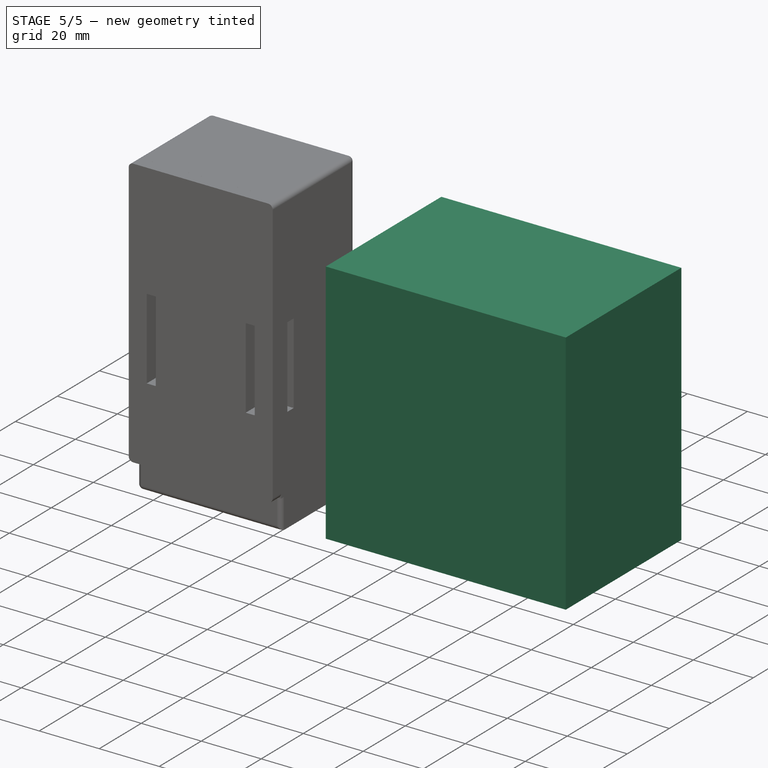
[diagram: stage 5 of 5 — iso view after this stage's code; geometry added in this stage tinted green]
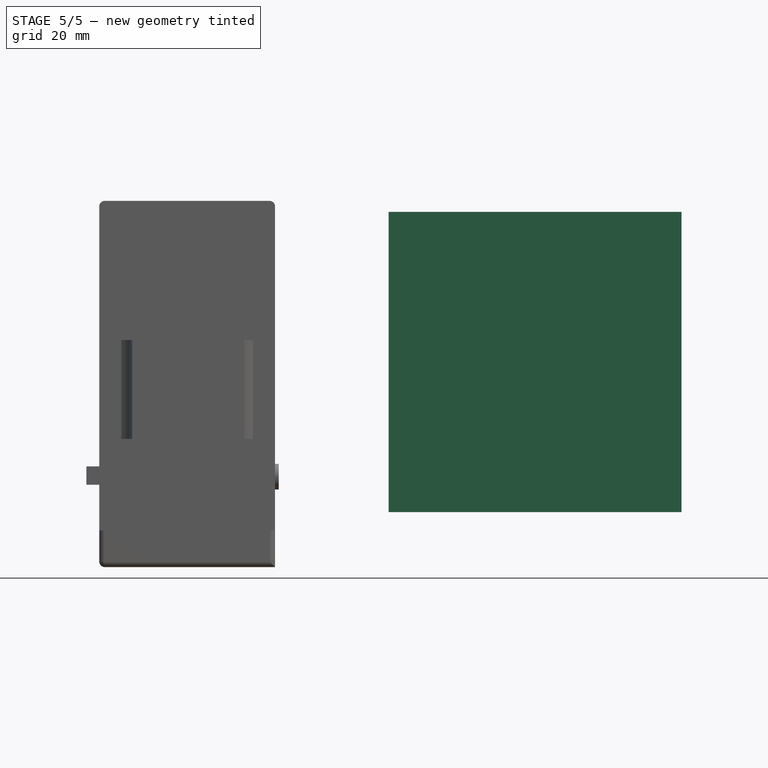
[diagram: stage 5 of 5 — front view after this stage's code; geometry added in this stage tinted green]
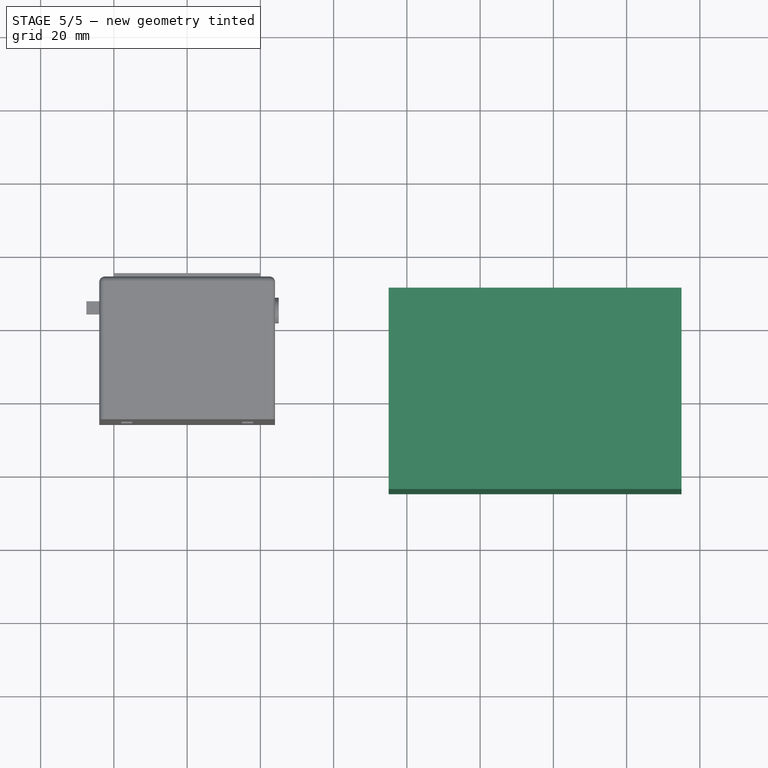
[diagram: stage 5 of 5 — top view after this stage's code; geometry added in this stage tinted green]
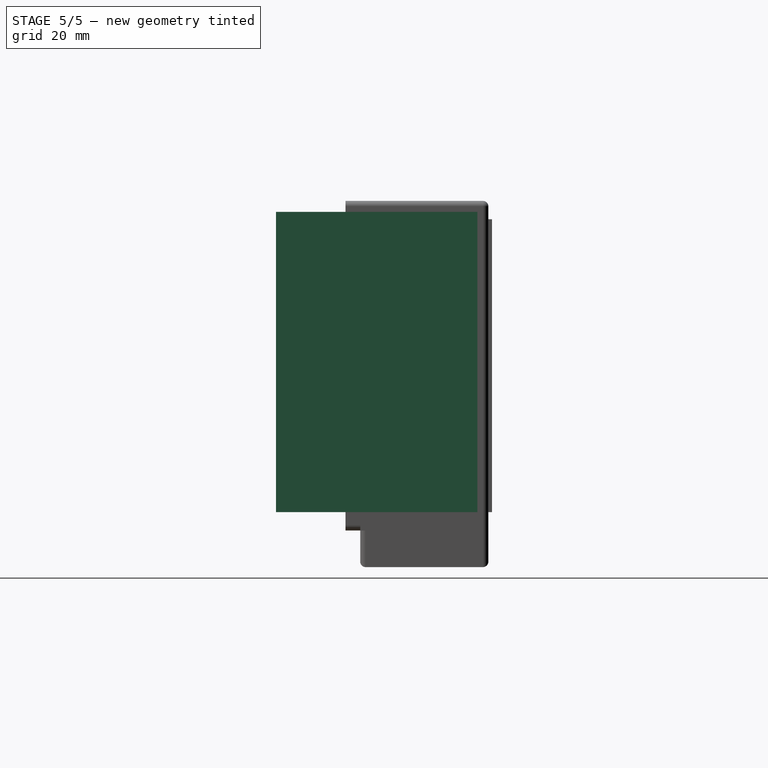
[diagram: stage 5 of 5 — right view after this stage's code; geometry added in this stage tinted green]
FEATURE [Part::Box] Box  label="PCB"
  Height = 80
  Length = 40
  Placement = pos=(-20,0,0) rot=(0,0,1;0rad)
  Width = 2
FEATURE [Part::Box] Box001  label="AA Battery"
  Height = 60
  Length = 33
  Placement = pos=(-16,-16,10) rot=(0,0,1;0rad)
  Width = 16
FEATURE [Part::Box] Box002  label="G366"
  Height = 82
  Length = 80
  Placement = pos=(55,-45,0) rot=(0,0,1;0rad)
  Width = 55
FEATURE [Part::Cylinder] Cylinder010  label="Back_Mount_cut1"
  Angle = 360
  Height = 22
  Placement = pos=(0,0,75) rot=(1,0,0;1.5708rad)
  Radius = 4
FEATURE [Part::Cylinder] Cylinder011  label="Back_Mount_cut2"
  Angle = 360
  Height = 22
  Placement = pos=(0,0,5) rot=(1,0,0;1.5708rad)
  Radius = 4
FEATURE [Part::Cylinder] Cylinder012  label="PCB Mount_cut2+1"
  Angle = 360
  Height = 6
  Placement = pos=(0,5,5) rot=(1,0,0;1.5708rad)
  Radius = 1.15
FEATURE [Part::Cylinder] Cylinder013  label="PCB Mount_cut1+1"
  Angle = 360
  Height = 6
  Placement = pos=(0,5,75) rot=(1,0,0;1.5708rad)
  Radius = 1.15
FEATURE [Part::Cylinder] Cylinder  label="PCB Mount_cut1+2"
  Angle = 360
  Height = 22
  Placement = pos=(0,-1,75) rot=(1,0,0;1.5708rad)
  Radius = 3
FEATURE [Part::Cylinder] Cylinder014  label="PCB Mount_cut2+2"
  Angle = 360
  Height = 22
  Placement = pos=(0,-1,5) rot=(1,0,0;1.5708rad)
  Radius = 3
FEATURE [Part::MultiFuse] Fusion
  Shapes = -> [Cylinder013,Cylinder]
FEATURE [Part::MultiFuse] Fusion004
  Shapes = -> [Cylinder012,Cylinder014]
FEATURE [Part::Cut] Cut001  label="Back M 2"
  Base = -> Cylinder011
  Tool = -> Fusion004
FEATURE [Part::Cut] Cut002  label="Back M 1"
  Base = -> Cylinder010
  Tool = -> Fusion
FEATURE [Part::MultiFuse] Fusion005
  Shapes = -> [Cut002,Cut001]
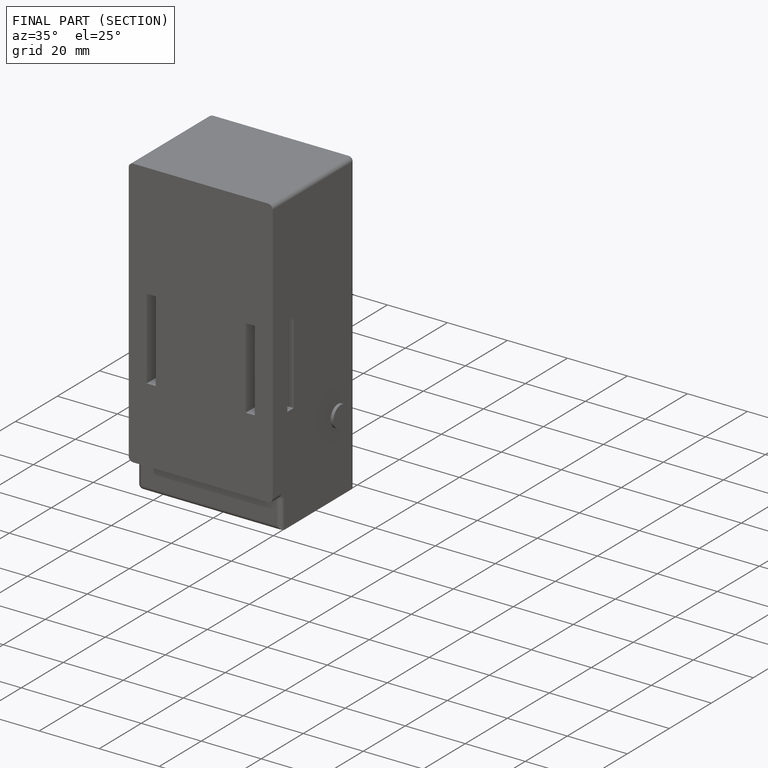
[diagram: finished part — half-section view (interior)]
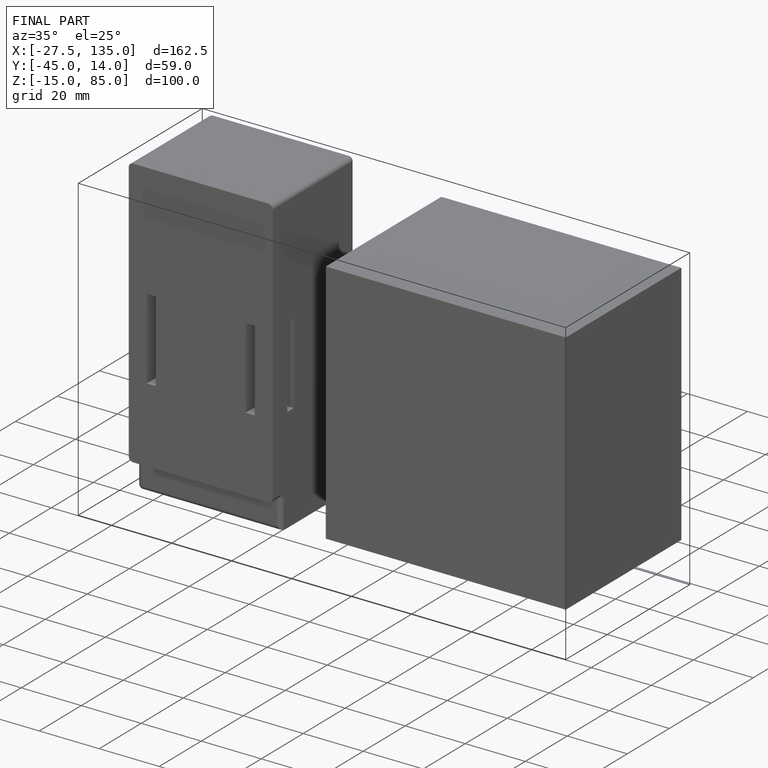
[diagram: finished part — iso view with bounding-box wireframe]
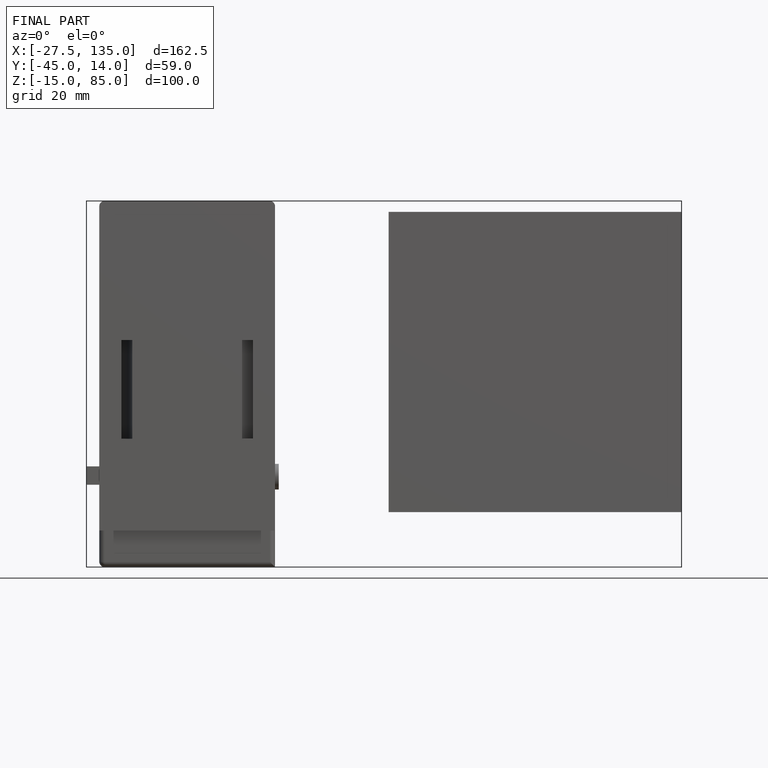
[diagram: finished part — front view with bounding-box wireframe]
